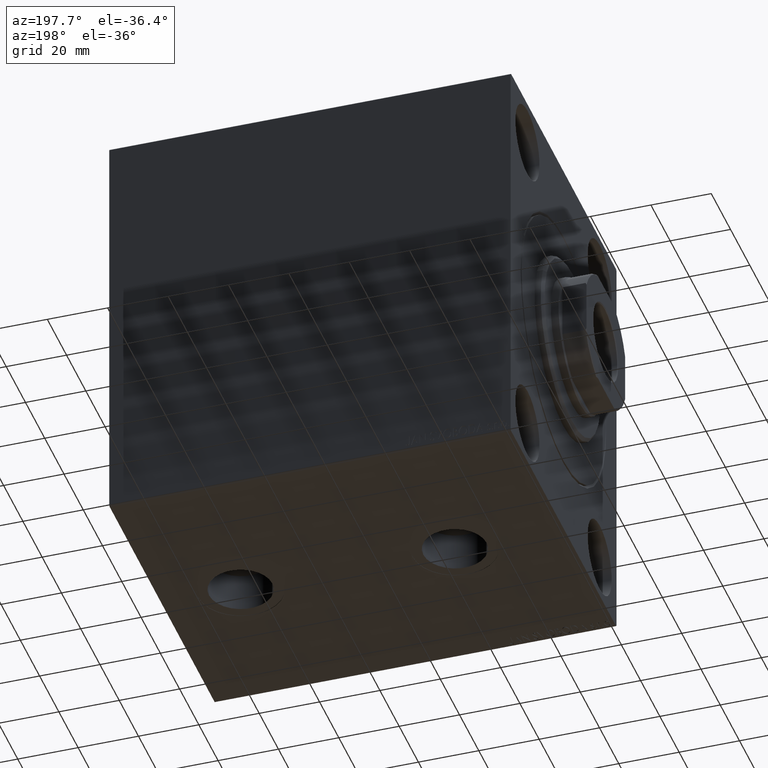
[diagram: clean part render]
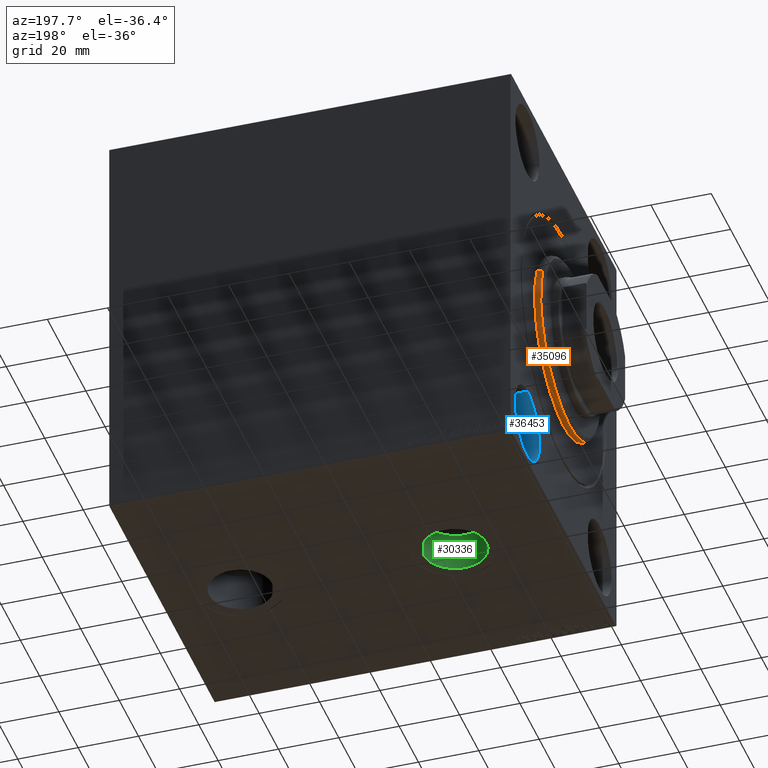
[diagram: same view with three faces highlighted in distinct colors, each labeled with its STEP entity id]
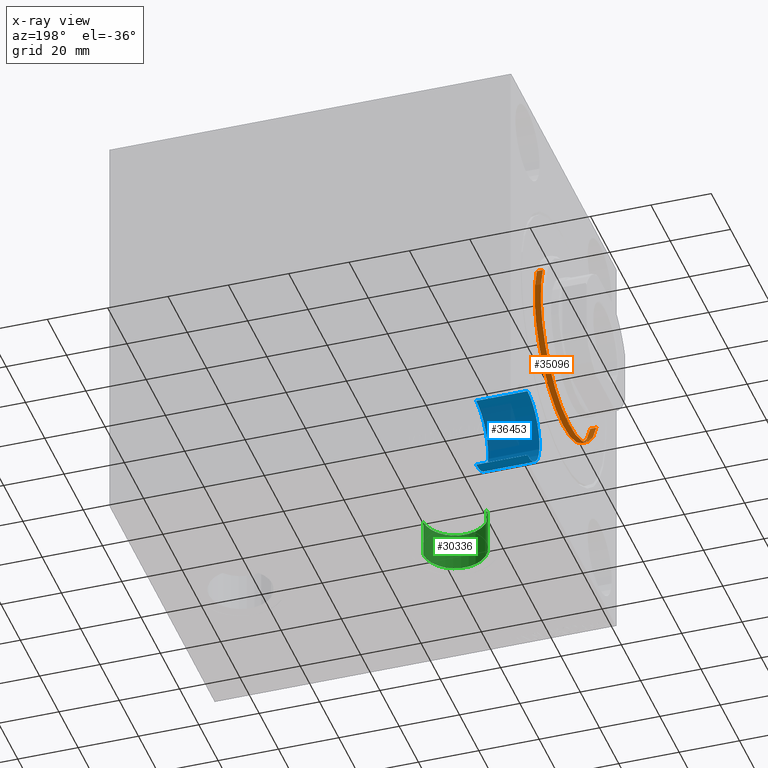
[diagram: x-ray of the same camera — body ghosted, the three highlighted faces saturated]
A machine part, auxiliary view with three faces highlighted in distinct colors.
The next image is the same camera in x-ray (body ghosted, the three faces saturated) — at least one of them is partly hidden behind the body in this view.
Their STEP definitions:

[orange] entity #35096 — the highlighted cylindrical surface (partial cylindrical patch) has radius 30 mm, axis along (1, 0, 0).
#2532 = AXIS2_PLACEMENT_3D ( 'NONE', #9230, #12558, #22600 ) ;
#3616 = AXIS2_PLACEMENT_3D ( 'NONE', #23334, #37128, #20205 ) ;
#6988 = CARTESIAN_POINT ( 'NONE',  ( 3.000000000000000000, 0.000000000000000000, 0.000000000000000000 ) ) ;
#7233 = DIRECTION ( 'NONE',  ( -1.000000000000000000, -0.000000000000000000, -0.000000000000000000 ) ) ;
#7988 = CARTESIAN_POINT ( 'NONE',  ( 0.000000000000000000, 0.000000000000000000, 30.00000000000000000 ) ) ;
#9215 = VERTEX_POINT ( 'NONE', #39467 ) ;
#9230 = CARTESIAN_POINT ( 'NONE',  ( 1.999999999999992228, 0.000000000000000000, 0.000000000000000000 ) ) ;
#10172 = VECTOR ( 'NONE', #12157, 1000.000000000000000 ) ;
#10984 = FACE_OUTER_BOUND ( 'NONE', #19468, .T. ) ;
#12157 = DIRECTION ( 'NONE',  ( -1.000000000000000000, -0.000000000000000000, -0.000000000000000000 ) ) ;
#12558 = DIRECTION ( 'NONE',  ( -1.000000000000000000, 0.000000000000000000, 0.000000000000000000 ) ) ;
#13769 = EDGE_CURVE ( 'NONE', #40564, #25180, #34849, .T. ) ;
#16033 = AXIS2_PLACEMENT_3D ( 'NONE', #6988, #33714, #17226 ) ;
#17226 = DIRECTION ( 'NONE',  ( 0.000000000000000000, 0.000000000000000000, 1.000000000000000000 ) ) ;
#17735 = CARTESIAN_POINT ( 'NONE',  ( 1.999999999999992228, 3.673940397442059178E-15, -30.00000000000000000 ) ) ;
#19468 = EDGE_LOOP ( 'NONE', ( #34101, #28249, #26297, #30795 ) ) ;
#19565 = CIRCLE ( 'NONE', #2532, 30.00000000000000000 ) ;
#20205 = DIRECTION ( 'NONE',  ( 0.000000000000000000, 0.000000000000000000, -1.000000000000000000 ) ) ;
#22600 = DIRECTION ( 'NONE',  ( 0.000000000000000000, 0.000000000000000000, -1.000000000000000000 ) ) ;
#22624 = CARTESIAN_POINT ( 'NONE',  ( 3.000000000000000000, 0.000000000000000000, 30.00000000000000000 ) ) ;
#22778 = EDGE_CURVE ( 'NONE', #25180, #41177, #29943, .T. ) ;
#23334 = CARTESIAN_POINT ( 'NONE',  ( 0.000000000000000000, 0.000000000000000000, 0.000000000000000000 ) ) ;
#25180 = VERTEX_POINT ( 'NONE', #27706 ) ;
#26297 = ORIENTED_EDGE ( 'NONE', *, *, #22778, .T. ) ;
#27706 = CARTESIAN_POINT ( 'NONE',  ( 0.000000000000000000, 3.673940397442059178E-15, -30.00000000000000000 ) ) ;
#28249 = ORIENTED_EDGE ( 'NONE', *, *, #13769, .T. ) ;
#29943 = CIRCLE ( 'NONE', #3616, 30.00000000000000000 ) ;
#30235 = EDGE_CURVE ( 'NONE', #9215, #41177, #32420, .T. ) ;
#30795 = ORIENTED_EDGE ( 'NONE', *, *, #30235, .F. ) ;
#31046 = CARTESIAN_POINT ( 'NONE',  ( 3.000000000000000000, 3.673940397442059178E-15, -30.00000000000000000 ) ) ;
#32420 = LINE ( 'NONE', #22624, #10172 ) ;
#33714 = DIRECTION ( 'NONE',  ( -1.000000000000000000, -0.000000000000000000, -0.000000000000000000 ) ) ;
#34101 = ORIENTED_EDGE ( 'NONE', *, *, #34164, .T. ) ;
#34164 = EDGE_CURVE ( 'NONE', #9215, #40564, #19565, .T. ) ;
#34849 = LINE ( 'NONE', #31046, #38944 ) ;
#35096 = ADVANCED_FACE ( 'NONE', ( #10984 ), #40831, .T. ) ;
#37128 = DIRECTION ( 'NONE',  ( 1.000000000000000000, -0.000000000000000000, 0.000000000000000000 ) ) ;
#38944 = VECTOR ( 'NONE', #7233, 1000.000000000000000 ) ;
#39467 = CARTESIAN_POINT ( 'NONE',  ( 1.999999999999992228, 0.000000000000000000, 30.00000000000000000 ) ) ;
#40564 = VERTEX_POINT ( 'NONE', #17735 ) ;
#40831 = CYLINDRICAL_SURFACE ( 'NONE', #16033, 30.00000000000000000 ) ;
#41177 = VERTEX_POINT ( 'NONE', #7988 ) ;

[blue] entity #36453 — the highlighted cylindrical surface (partial cylindrical patch) has radius 12.5 mm, axis along (-1, -0, -0).
#1278 = LINE ( 'NONE', #21988, #25409 ) ;
#4780 = CIRCLE ( 'NONE', #18988, 12.49999999999999645 ) ;
#5290 = DIRECTION ( 'NONE',  ( 0.000000000000000000, 0.000000000000000000, 1.000000000000000000 ) ) ;
#5510 = FACE_OUTER_BOUND ( 'NONE', #27327, .T. ) ;
#6599 = EDGE_CURVE ( 'NONE', #15942, #10995, #4780, .T. ) ;
#6835 = CARTESIAN_POINT ( 'NONE',  ( 17.00000000000000000, 37.49999999999997868, -42.49999999999999289 ) ) ;
#6900 = AXIS2_PLACEMENT_3D ( 'NONE', #36734, #34257, #40938 ) ;
#7202 = DIRECTION ( 'NONE',  ( -1.000000000000000000, 0.000000000000000000, 0.000000000000000000 ) ) ;
#9259 = VERTEX_POINT ( 'NONE', #25177 ) ;
#10295 = ORIENTED_EDGE ( 'NONE', *, *, #27749, .F. ) ;
#10326 = CARTESIAN_POINT ( 'NONE',  ( 17.00000000000000000, 37.49999999999997868, -54.99999999999999289 ) ) ;
#10995 = VERTEX_POINT ( 'NONE', #6835 ) ;
#11883 = EDGE_CURVE ( 'NONE', #15942, #9259, #1278, .T. ) ;
#12419 = VERTEX_POINT ( 'NONE', #34277 ) ;
#13882 = AXIS2_PLACEMENT_3D ( 'NONE', #15954, #25773, #5290 ) ;
#15942 = VERTEX_POINT ( 'NONE', #22164 ) ;
#15954 = CARTESIAN_POINT ( 'NONE',  ( 17.00000000000000000, 37.49999999999997868, -54.99999999999999289 ) ) ;
#16432 = CARTESIAN_POINT ( 'NONE',  ( 17.00000000000000000, 37.49999999999997868, -42.49999999999999289 ) ) ;
#18988 = AXIS2_PLACEMENT_3D ( 'NONE', #10326, #7202, #27053 ) ;
#19909 = ORIENTED_EDGE ( 'NONE', *, *, #40201, .T. ) ;
#21988 = CARTESIAN_POINT ( 'NONE',  ( 17.00000000000000000, 37.49999999999997868, -67.49999999999998579 ) ) ;
#22164 = CARTESIAN_POINT ( 'NONE',  ( 17.00000000000000000, 37.49999999999997868, -67.49999999999998579 ) ) ;
#25177 = CARTESIAN_POINT ( 'NONE',  ( 0.000000000000000000, 37.49999999999997868, -67.49999999999998579 ) ) ;
#25409 = VECTOR ( 'NONE', #35565, 1000.000000000000000 ) ;
#25773 = DIRECTION ( 'NONE',  ( -1.000000000000000000, -0.000000000000000000, -0.000000000000000000 ) ) ;
#27053 = DIRECTION ( 'NONE',  ( 0.000000000000000000, 0.000000000000000000, 1.000000000000000000 ) ) ;
#27327 = EDGE_LOOP ( 'NONE', ( #37072, #30156, #19909, #10295 ) ) ;
#27749 = EDGE_CURVE ( 'NONE', #10995, #12419, #40479, .T. ) ;
#30012 = DIRECTION ( 'NONE',  ( -1.000000000000000000, -0.000000000000000000, -0.000000000000000000 ) ) ;
#30156 = ORIENTED_EDGE ( 'NONE', *, *, #11883, .T. ) ;
#34257 = DIRECTION ( 'NONE',  ( -1.000000000000000000, 0.000000000000000000, 0.000000000000000000 ) ) ;
#34277 = CARTESIAN_POINT ( 'NONE',  ( 0.000000000000000000, 37.49999999999997868, -42.49999999999999289 ) ) ;
#34422 = VECTOR ( 'NONE', #30012, 1000.000000000000000 ) ;
#35565 = DIRECTION ( 'NONE',  ( -1.000000000000000000, -0.000000000000000000, -0.000000000000000000 ) ) ;
#35793 = CYLINDRICAL_SURFACE ( 'NONE', #13882, 12.49999999999999645 ) ;
#36453 = ADVANCED_FACE ( 'NONE', ( #5510 ), #35793, .F. ) ;
#36734 = CARTESIAN_POINT ( 'NONE',  ( 0.000000000000000000, 37.49999999999997868, -54.99999999999999289 ) ) ;
#36762 = CIRCLE ( 'NONE', #6900, 12.49999999999999645 ) ;
#37072 = ORIENTED_EDGE ( 'NONE', *, *, #6599, .F. ) ;
#40201 = EDGE_CURVE ( 'NONE', #9259, #12419, #36762, .T. ) ;
#40479 = LINE ( 'NONE', #16432, #34422 ) ;
#40938 = DIRECTION ( 'NONE',  ( 0.000000000000000000, 0.000000000000000000, 1.000000000000000000 ) ) ;

[green] entity #30336 — the highlighted cylindrical surface (edge-blend (fillet) strip) has radius 10.48 mm, axis along (-0, -0, -1).
#1523 = EDGE_CURVE ( 'NONE', #16537, #41858, #35197, .T. ) ;
#2808 = DIRECTION ( 'NONE',  ( -0.000000000000000000, -0.000000000000000000, -1.000000000000000000 ) ) ;
#3272 = VERTEX_POINT ( 'NONE', #7466 ) ;
#3635 = CARTESIAN_POINT ( 'NONE',  ( 36.00000000000000000, 7.996758912811346044E-15, -69.90000000000001990 ) ) ;
#3696 = EDGE_CURVE ( 'NONE', #41858, #3272, #20559, .T. ) ;
#6537 = EDGE_CURVE ( 'NONE', #16537, #30140, #13004, .T. ) ;
#7466 = CARTESIAN_POINT ( 'NONE',  ( 25.51999999999999602, 7.996758912811346044E-15, -69.90000000000001990 ) ) ;
#8084 = DIRECTION ( 'NONE',  ( -0.000000000000000000, -0.000000000000000000, -1.000000000000000000 ) ) ;
#12524 = CIRCLE ( 'NONE', #37412, 10.48000000000000043 ) ;
#13004 = LINE ( 'NONE', #26611, #17543 ) ;
#15009 = DIRECTION ( 'NONE',  ( 0.000000000000000000, 0.000000000000000000, -1.000000000000000000 ) ) ;
#16537 = VERTEX_POINT ( 'NONE', #37108 ) ;
#17543 = VECTOR ( 'NONE', #40183, 1000.000000000000000 ) ;
#17743 = CARTESIAN_POINT ( 'NONE',  ( 46.47999999999999687, 9.280188758317773110E-15, -69.90000000000001990 ) ) ;
#18786 = AXIS2_PLACEMENT_3D ( 'NONE', #40421, #2808, #33071 ) ;
#20559 = LINE ( 'NONE', #25010, #24605 ) ;
#21026 = CARTESIAN_POINT ( 'NONE',  ( 36.00000000000000000, 7.996758912811346044E-15, -57.00000000000001421 ) ) ;
#23044 = CYLINDRICAL_SURFACE ( 'NONE', #18786, 10.48000000000000043 ) ;
#24605 = VECTOR ( 'NONE', #8084, 1000.000000000000000 ) ;
#24819 = CARTESIAN_POINT ( 'NONE',  ( 25.51999999999999602, 7.996758912811346044E-15, -57.00000000000001421 ) ) ;
#25010 = CARTESIAN_POINT ( 'NONE',  ( 25.51999999999999602, 7.996758912811346044E-15, -57.00000000000001421 ) ) ;
#26611 = CARTESIAN_POINT ( 'NONE',  ( 46.47999999999999687, 9.280188758317773110E-15, -57.00000000000001421 ) ) ;
#28111 = AXIS2_PLACEMENT_3D ( 'NONE', #21026, #15009, #34610 ) ;
#29708 = DIRECTION ( 'NONE',  ( 0.000000000000000000, 0.000000000000000000, -1.000000000000000000 ) ) ;
#30140 = VERTEX_POINT ( 'NONE', #17743 ) ;
#30336 = ADVANCED_FACE ( 'NONE', ( #39982 ), #23044, .F. ) ;
#31626 = ORIENTED_EDGE ( 'NONE', *, *, #3696, .F. ) ;
#32759 = ORIENTED_EDGE ( 'NONE', *, *, #37060, .T. ) ;
#33071 = DIRECTION ( 'NONE',  ( -1.000000000000000000, 0.000000000000000000, 0.000000000000000000 ) ) ;
#34610 = DIRECTION ( 'NONE',  ( -1.000000000000000000, 0.000000000000000000, 0.000000000000000000 ) ) ;
#35197 = CIRCLE ( 'NONE', #28111, 10.48000000000000043 ) ;
#37060 = EDGE_CURVE ( 'NONE', #30140, #3272, #12524, .T. ) ;
#37108 = CARTESIAN_POINT ( 'NONE',  ( 46.47999999999999687, 9.280188758317773110E-15, -57.00000000000001421 ) ) ;
#37412 = AXIS2_PLACEMENT_3D ( 'NONE', #3635, #29708, #39952 ) ;
#38851 = ORIENTED_EDGE ( 'NONE', *, *, #1523, .F. ) ;
#39952 = DIRECTION ( 'NONE',  ( -1.000000000000000000, 0.000000000000000000, 0.000000000000000000 ) ) ;
#39982 = FACE_OUTER_BOUND ( 'NONE', #42018, .T. ) ;
#40183 = DIRECTION ( 'NONE',  ( -0.000000000000000000, -0.000000000000000000, -1.000000000000000000 ) ) ;
#40421 = CARTESIAN_POINT ( 'NONE',  ( 36.00000000000000000, 7.996758912811346044E-15, -57.00000000000001421 ) ) ;
#41858 = VERTEX_POINT ( 'NONE', #24819 ) ;
#42018 = EDGE_LOOP ( 'NONE', ( #38851, #43361, #32759, #31626 ) ) ;
#43361 = ORIENTED_EDGE ( 'NONE', *, *, #6537, .T. ) ;